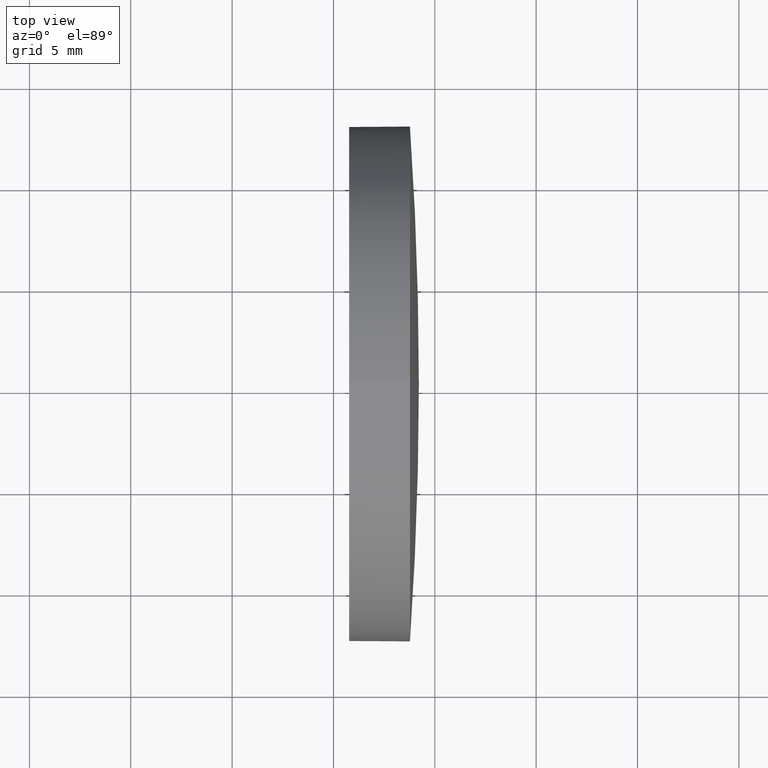
[diagram: clean part render]
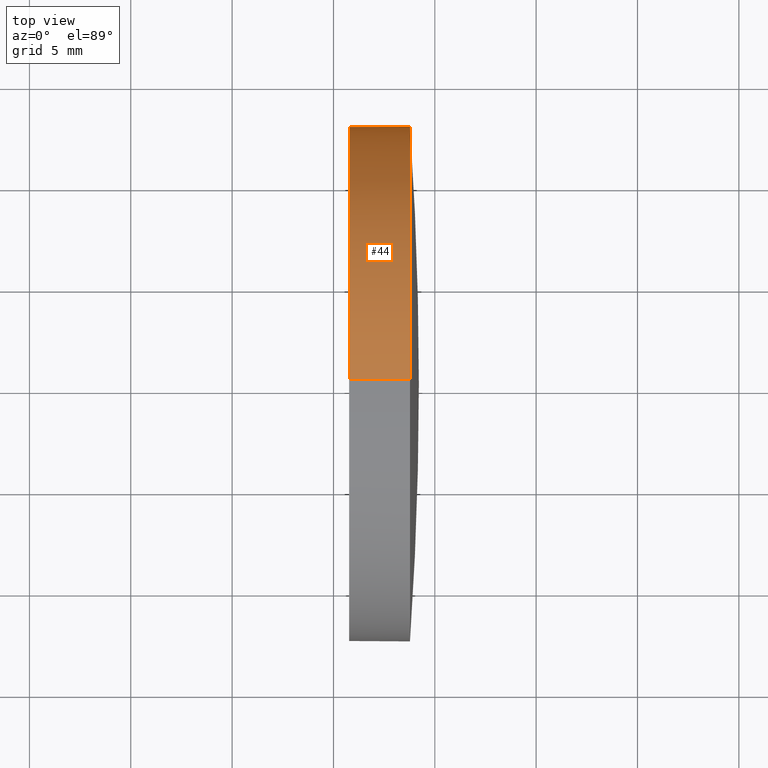
[diagram: same view with one face highlighted and labeled with its STEP entity id]
A machine part, top view. The second image highlights one B-rep face of the part: STEP entity #44.
In plain terms, the highlighted cylindrical surface (partial cylindrical patch) has radius 12.7 mm, axis along (-1, -0, -0).
Its self-contained STEP definition (entity closure, byte-faithful):
#2 = ORIENTED_EDGE ( 'NONE', *, *, #56, .F. ) ;
#11 = CARTESIAN_POINT ( 'NONE',  ( 115.7736064308381300, 65.23355492641219700, 12.70000000000000300 ) ) ;
#16 = LINE ( 'NONE', #29, #65 ) ;
#23 = DIRECTION ( 'NONE',  ( 0.0000000000000000000, 0.0000000000000000000, 1.000000000000000000 ) ) ;
#27 = VECTOR ( 'NONE', #91, 1000.000000000000000 ) ;
#29 = CARTESIAN_POINT ( 'NONE',  ( 110.1653732284884500, 65.23355492641219700, 12.70000000000000300 ) ) ;
#32 = DIRECTION ( 'NONE',  ( 0.0000000000000000000, 0.0000000000000000000, 1.000000000000000000 ) ) ;
#38 = CIRCLE ( 'NONE', #139, 12.70000000000000300 ) ;
#39 = VERTEX_POINT ( 'NONE', #71 ) ;
#43 = EDGE_LOOP ( 'NONE', ( #69, #174, #163, #2, #68 ) ) ;
#44 = ADVANCED_FACE ( 'NONE', ( #121 ), #156, .T. ) ;
#45 = CARTESIAN_POINT ( 'NONE',  ( 110.1653732284884500, 65.23355492641219700, -12.70000000000000300 ) ) ;
#48 = DIRECTION ( 'NONE',  ( -1.000000000000000000, -0.0000000000000000000, -0.0000000000000000000 ) ) ;
#50 = AXIS2_PLACEMENT_3D ( 'NONE', #155, #113, #32 ) ;
#56 = EDGE_CURVE ( 'NONE', #146, #150, #16, .T. ) ;
#60 = DIRECTION ( 'NONE',  ( 0.0000000000000000000, 0.0000000000000000000, 1.000000000000000000 ) ) ;
#65 = VECTOR ( 'NONE', #130, 1000.000000000000000 ) ;
#68 = ORIENTED_EDGE ( 'NONE', *, *, #152, .T. ) ;
#69 = ORIENTED_EDGE ( 'NONE', *, *, #112, .T. ) ;
#71 = CARTESIAN_POINT ( 'NONE',  ( 118.7738692334954700, 65.23355492641219700, -12.70000000000000300 ) ) ;
#81 = CARTESIAN_POINT ( 'NONE',  ( 115.7736064308381300, 65.23355492641219700, -12.70000000000000300 ) ) ;
#83 = EDGE_CURVE ( 'NONE', #39, #117, #165, .T. ) ;
#91 = DIRECTION ( 'NONE',  ( -1.000000000000000000, -0.0000000000000000000, -0.0000000000000000000 ) ) ;
#93 = DIRECTION ( 'NONE',  ( -1.000000000000000000, -0.0000000000000000000, -0.0000000000000000000 ) ) ;
#107 = CARTESIAN_POINT ( 'NONE',  ( 118.7738692334954700, 65.23355492641219700, 0.0000000000000000000 ) ) ;
#110 = VERTEX_POINT ( 'NONE', #137 ) ;
#112 = EDGE_CURVE ( 'NONE', #110, #39, #38, .T. ) ;
#113 = DIRECTION ( 'NONE',  ( -1.000000000000000000, -0.0000000000000000000, -0.0000000000000000000 ) ) ;
#117 = VERTEX_POINT ( 'NONE', #81 ) ;
#118 = CARTESIAN_POINT ( 'NONE',  ( 118.7738692334954700, 65.23355492641219700, 0.0000000000000000000 ) ) ;
#121 = FACE_OUTER_BOUND ( 'NONE', #43, .T. ) ;
#128 = EDGE_CURVE ( 'NONE', #150, #117, #136, .T. ) ;
#130 = DIRECTION ( 'NONE',  ( -1.000000000000000000, -0.0000000000000000000, -0.0000000000000000000 ) ) ;
#136 = CIRCLE ( 'NONE', #167, 12.70000000000000300 ) ;
#137 = CARTESIAN_POINT ( 'NONE',  ( 118.7738692334954700, 77.93355492641235600, 0.0000000000000000000 ) ) ;
#139 = AXIS2_PLACEMENT_3D ( 'NONE', #118, #179, #180 ) ;
#146 = VERTEX_POINT ( 'NONE', #181 ) ;
#147 = CARTESIAN_POINT ( 'NONE',  ( 115.7736064308381300, 65.23355492641219700, 0.0000000000000000000 ) ) ;
#148 = AXIS2_PLACEMENT_3D ( 'NONE', #107, #93, #60 ) ;
#150 = VERTEX_POINT ( 'NONE', #11 ) ;
#152 = EDGE_CURVE ( 'NONE', #146, #110, #173, .T. ) ;
#155 = CARTESIAN_POINT ( 'NONE',  ( 110.1653732284884500, 65.23355492641219700, 0.0000000000000000000 ) ) ;
#156 = CYLINDRICAL_SURFACE ( 'NONE', #50, 12.70000000000000300 ) ;
#163 = ORIENTED_EDGE ( 'NONE', *, *, #128, .F. ) ;
#165 = LINE ( 'NONE', #45, #27 ) ;
#167 = AXIS2_PLACEMENT_3D ( 'NONE', #147, #48, #23 ) ;
#173 = CIRCLE ( 'NONE', #148, 12.70000000000000300 ) ;
#174 = ORIENTED_EDGE ( 'NONE', *, *, #83, .T. ) ;
#179 = DIRECTION ( 'NONE',  ( -1.000000000000000000, -0.0000000000000000000, -0.0000000000000000000 ) ) ;
#180 = DIRECTION ( 'NONE',  ( 0.0000000000000000000, 0.0000000000000000000, 1.000000000000000000 ) ) ;
#181 = CARTESIAN_POINT ( 'NONE',  ( 118.7738692334954700, 65.23355492641219700, 12.70000000000000300 ) ) ;